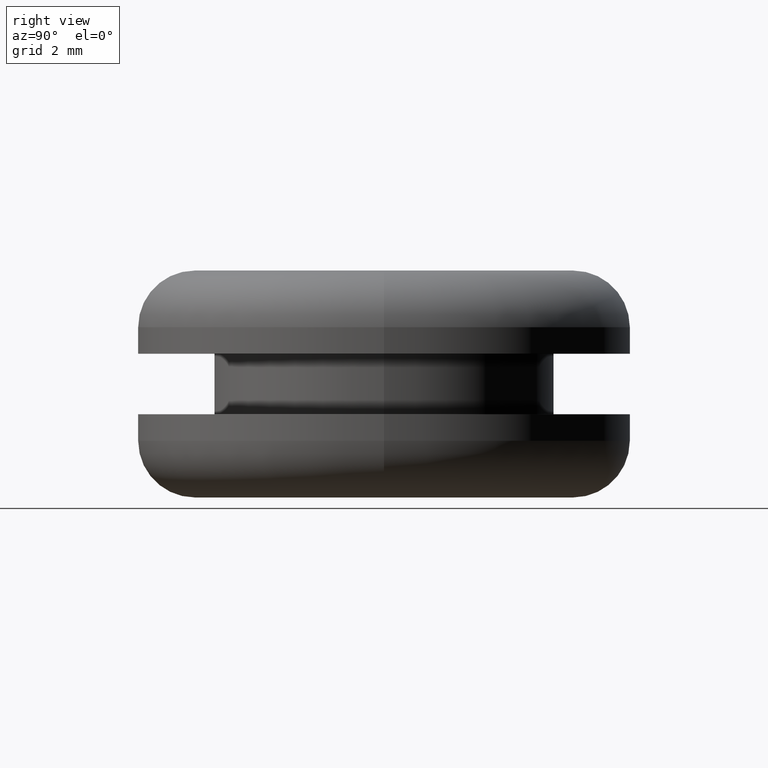
[diagram: clean part render]
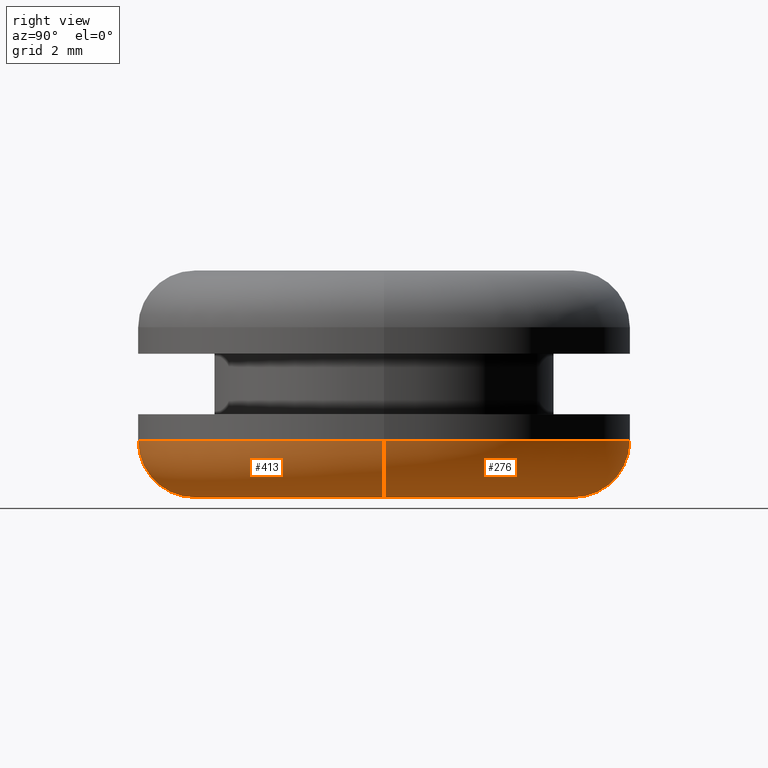
[diagram: same view with one multi-face feature highlighted, each face labeled with its STEP entity id]
A machine part, right view. The highlighted faces form ONE feature: a constant-radius fillet chain: 2 tangent blend faces with common blend radius 1.5 mm. The faces share edges in the B-rep.
Their STEP definitions:
[1] entity #276 (Torus):
#24 = VERTEX_POINT ( 'NONE', #406 ) ;
#25 = DIRECTION ( 'NONE',  ( -1.000000000000000000, 0.0000000000000000000, 0.0000000000000000000 ) ) ;
#53 = AXIS2_PLACEMENT_3D ( 'NONE', #108, #362, #432 ) ;
#56 = VERTEX_POINT ( 'NONE', #372 ) ;
#62 = VERTEX_POINT ( 'NONE', #171 ) ;
#66 = DIRECTION ( 'NONE',  ( 0.0000000000000000000, 0.0000000000000000000, -1.000000000000000000 ) ) ;
#94 = AXIS2_PLACEMENT_3D ( 'NONE', #401, #109, #303 ) ;
#99 = CARTESIAN_POINT ( 'NONE',  ( 104.2104937854872000, 0.0000000000000000000, 139.4985603604342000 ) ) ;
#108 = CARTESIAN_POINT ( 'NONE',  ( 99.21049378546730700, 0.0000000000000000000, 139.4985603604342000 ) ) ;
#109 = DIRECTION ( 'NONE',  ( 0.0000000000000000000, 0.0000000000000000000, -1.000000000000000000 ) ) ;
#171 = CARTESIAN_POINT ( 'NONE',  ( 99.21049378546730700, 0.0000000000000000000, 137.9985603604342000 ) ) ;
#175 = CIRCLE ( 'NONE', #53, 1.500000000000001300 ) ;
#181 = CIRCLE ( 'NONE', #297, 1.500000000000001300 ) ;
#198 = AXIS2_PLACEMENT_3D ( 'NONE', #99, #66, #25 ) ;
#214 = FACE_OUTER_BOUND ( 'NONE', #326, .T. ) ;
#215 = DIRECTION ( 'NONE',  ( -1.224646799147353200E-016, 1.000000000000000000, 0.0000000000000000000 ) ) ;
#234 = DIRECTION ( 'NONE',  ( -1.000000000000000000, -1.224646799147352000E-016, 0.0000000000000000000 ) ) ;
#275 = ORIENTED_EDGE ( 'NONE', *, *, #387, .T. ) ;
#276 = ADVANCED_FACE ( 'NONE', ( #214 ), #373, .T. ) ;
#297 = AXIS2_PLACEMENT_3D ( 'NONE', #344, #215, #234 ) ;
#303 = DIRECTION ( 'NONE',  ( -1.000000000000000000, 0.0000000000000000000, 0.0000000000000000000 ) ) ;
#312 = ORIENTED_EDGE ( 'NONE', *, *, #477, .F. ) ;
#323 = CARTESIAN_POINT ( 'NONE',  ( 104.2104937854872000, 0.0000000000000000000, 137.9985603604342000 ) ) ;
#326 = EDGE_LOOP ( 'NONE', ( #430, #275, #388, #312 ) ) ;
#334 = EDGE_CURVE ( 'NONE', #24, #350, #466, .T. ) ;
#344 = CARTESIAN_POINT ( 'NONE',  ( 109.2104937855071000, 6.123233995761125300E-016, 139.4985603604342000 ) ) ;
#350 = VERTEX_POINT ( 'NONE', #446 ) ;
#362 = DIRECTION ( 'NONE',  ( -0.0000000000000000000, -1.000000000000000000, -0.0000000000000000000 ) ) ;
#372 = CARTESIAN_POINT ( 'NONE',  ( 109.2104937855071000, 7.041719095121637900E-016, 137.9985603604342000 ) ) ;
#373 = TOROIDAL_SURFACE ( 'NONE', #94, 5.000000000019890800, 1.500000000000000000 ) ;
#374 = DIRECTION ( 'NONE',  ( -1.000000000000000000, 0.0000000000000000000, 0.0000000000000000000 ) ) ;
#387 = EDGE_CURVE ( 'NONE', #350, #56, #181, .T. ) ;
#388 = ORIENTED_EDGE ( 'NONE', *, *, #426, .F. ) ;
#401 = CARTESIAN_POINT ( 'NONE',  ( 104.2104937854872000, 0.0000000000000000000, 139.4985603604342000 ) ) ;
#406 = CARTESIAN_POINT ( 'NONE',  ( 97.71049378546730700, 0.0000000000000000000, 139.4985603604342000 ) ) ;
#417 = AXIS2_PLACEMENT_3D ( 'NONE', #323, #467, #374 ) ;
#419 = CIRCLE ( 'NONE', #417, 5.000000000019891600 ) ;
#426 = EDGE_CURVE ( 'NONE', #62, #56, #419, .T. ) ;
#430 = ORIENTED_EDGE ( 'NONE', *, *, #334, .T. ) ;
#432 = DIRECTION ( 'NONE',  ( 0.0000000000000000000, 0.0000000000000000000, -1.000000000000000000 ) ) ;
#446 = CARTESIAN_POINT ( 'NONE',  ( 110.7104937855071000, 7.960204194482154500E-016, 139.4985603604342000 ) ) ;
#466 = CIRCLE ( 'NONE', #198, 6.500000000019892500 ) ;
#467 = DIRECTION ( 'NONE',  ( 0.0000000000000000000, 0.0000000000000000000, -1.000000000000000000 ) ) ;
#477 = EDGE_CURVE ( 'NONE', #24, #62, #175, .T. ) ;
[2] entity #413 (Torus):
#24 = VERTEX_POINT ( 'NONE', #406 ) ;
#42 = TOROIDAL_SURFACE ( 'NONE', #375, 5.000000000019890800, 1.500000000000000000 ) ;
#43 = EDGE_CURVE ( 'NONE', #56, #62, #195, .T. ) ;
#53 = AXIS2_PLACEMENT_3D ( 'NONE', #108, #362, #432 ) ;
#56 = VERTEX_POINT ( 'NONE', #372 ) ;
#62 = VERTEX_POINT ( 'NONE', #171 ) ;
#90 = DIRECTION ( 'NONE',  ( -1.000000000000000000, 0.0000000000000000000, 0.0000000000000000000 ) ) ;
#108 = CARTESIAN_POINT ( 'NONE',  ( 99.21049378546730700, 0.0000000000000000000, 139.4985603604342000 ) ) ;
#127 = CARTESIAN_POINT ( 'NONE',  ( 104.2104937854872000, 0.0000000000000000000, 137.9985603604342000 ) ) ;
#128 = CARTESIAN_POINT ( 'NONE',  ( 104.2104937854872000, 0.0000000000000000000, 139.4985603604342000 ) ) ;
#131 = ORIENTED_EDGE ( 'NONE', *, *, #387, .F. ) ;
#136 = AXIS2_PLACEMENT_3D ( 'NONE', #127, #143, #151 ) ;
#143 = DIRECTION ( 'NONE',  ( 0.0000000000000000000, 0.0000000000000000000, -1.000000000000000000 ) ) ;
#149 = EDGE_CURVE ( 'NONE', #350, #24, #390, .T. ) ;
#151 = DIRECTION ( 'NONE',  ( -1.000000000000000000, 0.0000000000000000000, 0.0000000000000000000 ) ) ;
#171 = CARTESIAN_POINT ( 'NONE',  ( 99.21049378546730700, 0.0000000000000000000, 137.9985603604342000 ) ) ;
#175 = CIRCLE ( 'NONE', #53, 1.500000000000001300 ) ;
#181 = CIRCLE ( 'NONE', #297, 1.500000000000001300 ) ;
#195 = CIRCLE ( 'NONE', #136, 5.000000000019891600 ) ;
#196 = EDGE_LOOP ( 'NONE', ( #131, #257, #217, #318 ) ) ;
#215 = DIRECTION ( 'NONE',  ( -1.224646799147353200E-016, 1.000000000000000000, 0.0000000000000000000 ) ) ;
#217 = ORIENTED_EDGE ( 'NONE', *, *, #477, .T. ) ;
#234 = DIRECTION ( 'NONE',  ( -1.000000000000000000, -1.224646799147352000E-016, 0.0000000000000000000 ) ) ;
#244 = FACE_OUTER_BOUND ( 'NONE', #196, .T. ) ;
#246 = DIRECTION ( 'NONE',  ( 0.0000000000000000000, 0.0000000000000000000, -1.000000000000000000 ) ) ;
#257 = ORIENTED_EDGE ( 'NONE', *, *, #149, .T. ) ;
#270 = AXIS2_PLACEMENT_3D ( 'NONE', #128, #246, #90 ) ;
#297 = AXIS2_PLACEMENT_3D ( 'NONE', #344, #215, #234 ) ;
#318 = ORIENTED_EDGE ( 'NONE', *, *, #43, .F. ) ;
#341 = CARTESIAN_POINT ( 'NONE',  ( 104.2104937854872000, 0.0000000000000000000, 139.4985603604342000 ) ) ;
#344 = CARTESIAN_POINT ( 'NONE',  ( 109.2104937855071000, 6.123233995761125300E-016, 139.4985603604342000 ) ) ;
#350 = VERTEX_POINT ( 'NONE', #446 ) ;
#359 = DIRECTION ( 'NONE',  ( 0.0000000000000000000, 0.0000000000000000000, -1.000000000000000000 ) ) ;
#362 = DIRECTION ( 'NONE',  ( -0.0000000000000000000, -1.000000000000000000, -0.0000000000000000000 ) ) ;
#372 = CARTESIAN_POINT ( 'NONE',  ( 109.2104937855071000, 7.041719095121637900E-016, 137.9985603604342000 ) ) ;
#375 = AXIS2_PLACEMENT_3D ( 'NONE', #341, #359, #399 ) ;
#387 = EDGE_CURVE ( 'NONE', #350, #56, #181, .T. ) ;
#390 = CIRCLE ( 'NONE', #270, 6.500000000019892500 ) ;
#399 = DIRECTION ( 'NONE',  ( -1.000000000000000000, 0.0000000000000000000, 0.0000000000000000000 ) ) ;
#406 = CARTESIAN_POINT ( 'NONE',  ( 97.71049378546730700, 0.0000000000000000000, 139.4985603604342000 ) ) ;
#413 = ADVANCED_FACE ( 'NONE', ( #244 ), #42, .T. ) ;
#432 = DIRECTION ( 'NONE',  ( 0.0000000000000000000, 0.0000000000000000000, -1.000000000000000000 ) ) ;
#446 = CARTESIAN_POINT ( 'NONE',  ( 110.7104937855071000, 7.960204194482154500E-016, 139.4985603604342000 ) ) ;
#477 = EDGE_CURVE ( 'NONE', #24, #62, #175, .T. ) ;